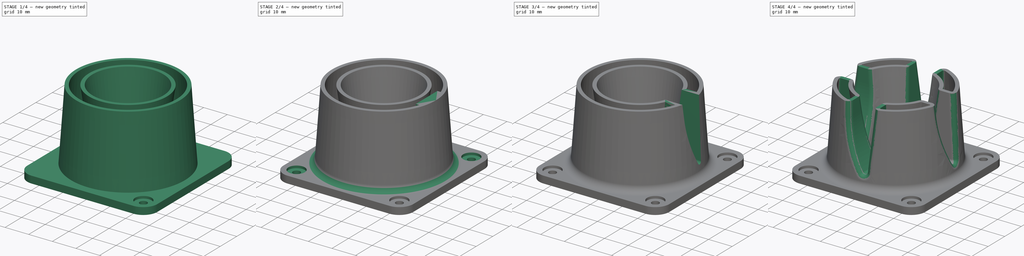
[diagram: build sequence overview — one tinted view per stage of 4, left to right]
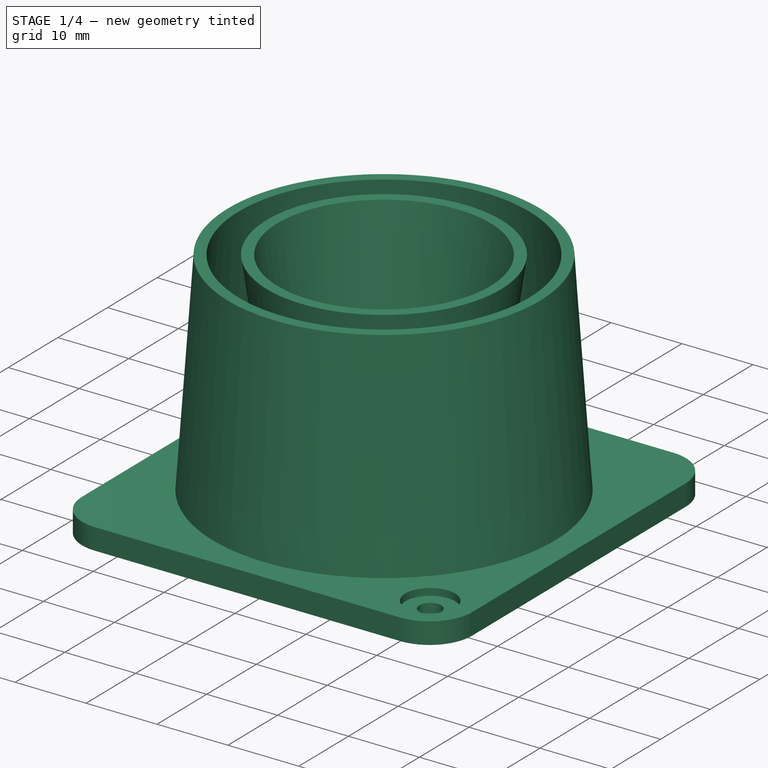
[diagram: stage 1 of 4 — iso view after this stage's code; geometry added in this stage tinted green]
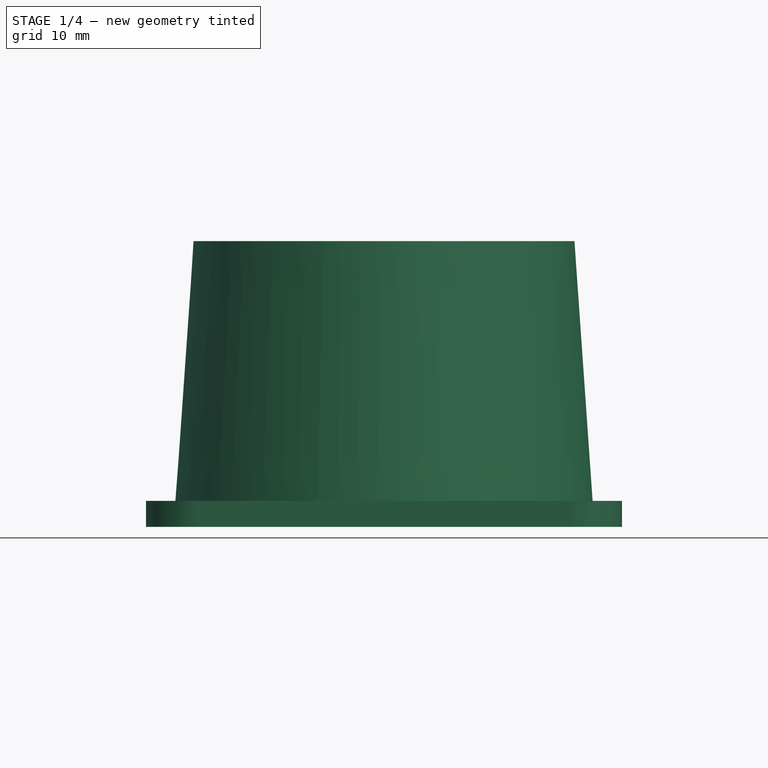
[diagram: stage 1 of 4 — front view after this stage's code; geometry added in this stage tinted green]
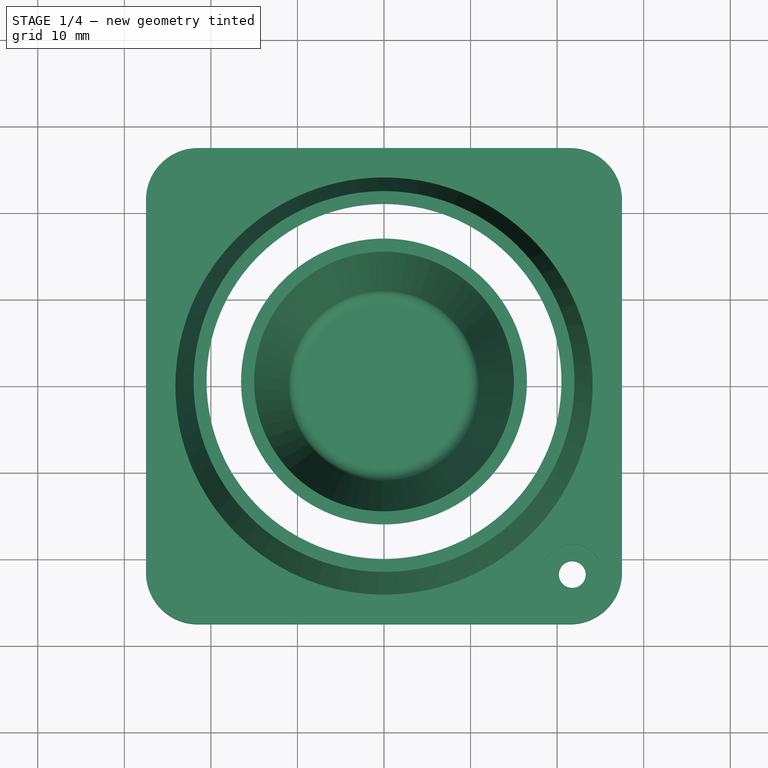
[diagram: stage 1 of 4 — top view after this stage's code; geometry added in this stage tinted green]
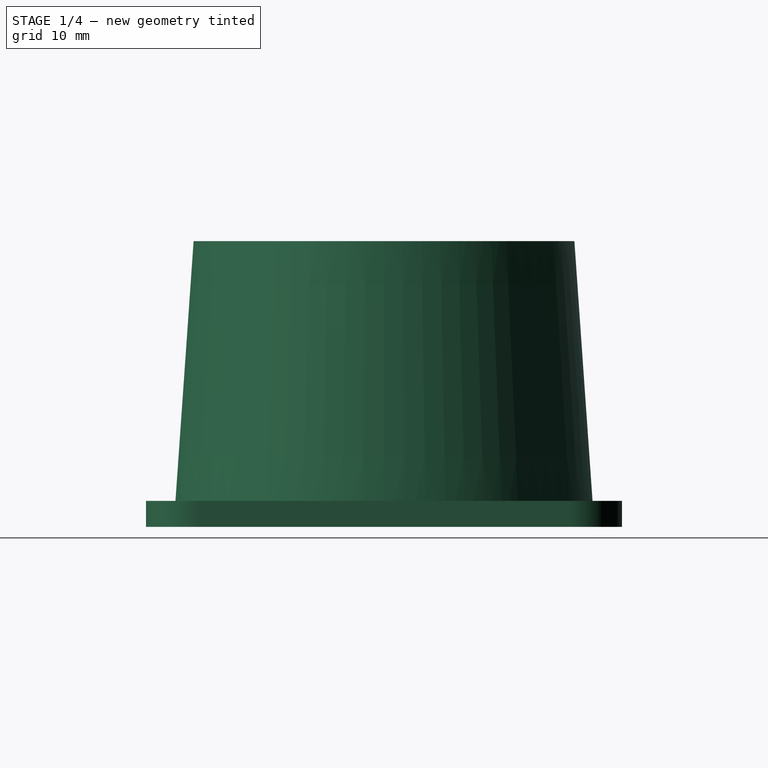
[diagram: stage 1 of 4 — right view after this stage's code; geometry added in this stage tinted green]
FCSTD DOCUMENT  (FreeCAD 1.0R39319 (Git))
Label: 25-SPO-20-FAN SHROLID
License: All rights reserved
LicenseURL: https://en.wikipedia.org/wiki/All_rights_reserved
objects: Sketcher::SketchObject×4, PartDesign::Pad×3, PartDesign::Fillet×3, PartDesign::PolarPattern×2, PartDesign::Revolution×1, PartDesign::Groove×1, PartDesign::Pocket×1, PartDesign::Body×1
note: 40 computed .brp shape members not serialized (recipe doc carries the construction recipe); baked Part::Feature solids carry a one-line shape summary decoded from their .brp

FEATURE [Sketcher::SketchObject] Sketch
  ArcFitTolerance = 1e-06
  AttachmentSupport = -> [XZ_Plane]
  FullyConstrained = true
  MakeInternals = false
  MapMode = 5
  Placement = pos=(0,0,0) rot=(1,0,0;1.5708rad)
  expr: Constraints[22] = 30 / 2
  expr: Constraints[8] = 44 / 2
  sketch-geometry (12):
    g0: LineSegment StartX=22.8039 StartY=0 StartZ=0 EndX=24.3076 EndY=0 EndZ=0
    g1: LineSegment StartX=24.3076 StartY=0 StartZ=0 EndX=22 EndY=33 EndZ=0
    g2: LineSegment StartX=22 StartY=33 StartZ=0 EndX=20.4963 EndY=33 EndZ=0
    g3: LineSegment StartX=20.4963 StartY=33 StartZ=0 EndX=22.8039 EndY=0 EndZ=0
    g4: LineSegment StartX=15 StartY=33 StartZ=0 EndX=10.9652 EndY=4.29124 EndZ=0
    g5: ArcOfCircle CenterX=9.47984 CenterY=4.5 CenterZ=0 NormalX=0 NormalY=0 NormalZ=1 AngleXU=0 Radius=1.5 StartAngle=4.71239 EndAngle=6.14356
    g6: LineSegment StartX=9.47984 StartY=3 StartZ=0 EndX=0 EndY=3 EndZ=0
    g7: LineSegment StartX=0 StartY=3 StartZ=0 EndX=0 EndY=1.5 EndZ=0
    g8: LineSegment StartX=0 StartY=1.5 StartZ=0 EndX=9.47984 EndY=1.5 EndZ=0
    g9: ArcOfCircle CenterX=9.47984 CenterY=4.5 CenterZ=0 NormalX=0 NormalY=0 NormalZ=1 AngleXU=0 Radius=3 StartAngle=4.71239 EndAngle=6.14356
    g10: LineSegment StartX=12.4506 StartY=4.08248 StartZ=0 EndX=16.5147 EndY=33 EndZ=0
    g11: LineSegment StartX=16.5147 StartY=33 StartZ=0 EndX=15 EndY=33 EndZ=0
  constraints (34):
    c: PointOnObject(g0,g-1)
    c: PointOnObject(g0,g-1)
    c: Coincident(g1,g2)
    c: Coincident(g2,g3)
    c: Coincident(g0,g3)
    c: Horizontal(g2)
    c: Parallel(g1,g3)
    c: Distance(g1,g3) = 1.5
    c: DistanceX(g1) = 22
    c: DistanceY(g2) = 33
    c: Tangent(g4,g5) = 1.5708
    c: PointOnObject(g6,g-2)
    c: Horizontal(g6)
    c: Coincident(g6,g7)
    c: PointOnObject(g7,g-2)
    c: Coincident(g7,g8)
    c: Horizontal(g8)
    c: Tangent(g8,g9) = -1.5708
    c: Coincident(g10,g11)
    c: Coincident(g11,g4)
    c: Horizontal(g11)
    c: Horizontal(g10,g2)
    c: DistanceX(g4) = 15
    c: Parallel(g4,g10)
    c: Distance(g4,g10) = 1.5
    c: Angle(g4,g-2) = 0.139626
    c: Coincident(g5,g9)
    c: Tangent(g9,g10) = -1.5708
    c: Tangent(g5,g6) = 1.5708
    c: Radius(g9) = 3
    c: DistanceY(g7) = 1.5
    c: Coincident(g0,g1)
    c: DistanceX(g0) = 22.8039
    c: Angle(g-2,g1) = 0.0698132
FEATURE [Sketcher::SketchObject] Sketch001
  ArcFitTolerance = 1e-06
  AttachmentSupport = -> [XY_Plane]
  FullyConstrained = true
  MakeInternals = false
  MapMode = 5
  sketch-geometry (13):
    g0: LineSegment StartX=-27.5 StartY=21.5 StartZ=0 EndX=-27.5 EndY=-21.5 EndZ=0
    g1: LineSegment StartX=-21.5 StartY=-27.5 StartZ=0 EndX=21.5 EndY=-27.5 EndZ=0
    g2: LineSegment StartX=27.5 StartY=-21.5 StartZ=0 EndX=27.5 EndY=21.5 EndZ=0
    g3: LineSegment StartX=21.5 StartY=27.5 StartZ=0 EndX=-21.5 EndY=27.5 EndZ=0
    g4: ArcOfCircle CenterX=-21.5 CenterY=21.5 CenterZ=0 NormalX=0 NormalY=0 NormalZ=1 AngleXU=0 Radius=6 StartAngle=1.5708 EndAngle=3.14159
    g5: GeomPoint [constr] X=-27.5 Y=27.5 Z=0
    g6: ArcOfCircle CenterX=21.5 CenterY=21.5 CenterZ=0 NormalX=0 NormalY=0 NormalZ=1 AngleXU=0 Radius=6 StartAngle=1e-16 EndAngle=1.5708
    g7: GeomPoint [constr] X=27.5 Y=27.5 Z=0
    g8: ArcOfCircle CenterX=21.5 CenterY=-21.5 CenterZ=0 NormalX=0 NormalY=0 NormalZ=1 AngleXU=0 Radius=6 StartAngle=4.71239 EndAngle=6.28319
    g9: GeomPoint [constr] X=27.5 Y=-27.5 Z=0
    g10: ArcOfCircle CenterX=-21.5 CenterY=-21.5 CenterZ=0 NormalX=0 NormalY=0 NormalZ=1 AngleXU=0 Radius=6 StartAngle=3.14159 EndAngle=4.71239
    g11: GeomPoint [constr] X=-27.5 Y=-27.5 Z=0
    g12: Circle CenterX=0 CenterY=0 CenterZ=0 NormalX=0 NormalY=0 NormalZ=1 AngleXU=0 Radius=23
  constraints (30):
    c: Vertical(g0)
    c: Vertical(g2)
    c: Horizontal(g1)
    c: Horizontal(g3)
    c: Symmetric(g7,g11,g-1)
    c: DistanceX(g5,g7) = 55
    c: PointOnObject(g5,g0)
    c: PointOnObject(g5,g3)
    c: Tangent(g0,g4) = -1.5708
    c: Tangent(g3,g4) = -1.5708
    c: PointOnObject(g7,g2)
    c: PointOnObject(g7,g3)
    c: Tangent(g2,g6) = -1.5708
    c: Tangent(g3,g6) = -1.5708
    c: PointOnObject(g9,g1)
    c: PointOnObject(g9,g2)
    c: Tangent(g1,g8) = -1.5708
    c: Tangent(g2,g8) = -1.5708
    c: PointOnObject(g11,g0)
    c: PointOnObject(g11,g1)
    c: Tangent(g0,g10) = -1.5708
    c: Tangent(g1,g10) = -1.5708
    c: Equal(g8,g10)
    c: Equal(g10,g6)
    c: Equal(g6,g4)
    c: Radius(g6) = 6
    c: DistanceX(g8) = 21.5
    c: Coincident(g12,g-1)
    c: Radius(g12) = 23
    c: Equal(g2,g3)
FEATURE [PartDesign::Pad] Pad
  Direction = (0,0,1)
  Length = 3
  Length2 = 10
  Profile = -> Sketch001
  ReferenceAxis = -> Sketch001 [N_Axis]
  Refine = true
  Suppressed = false
  Type = 0
FEATURE [PartDesign::Revolution] Revolution
  Angle = 360
  Angle2 = 60
  Axis = (0,2e-16,1)
  Base = (0,0,0)
  BaseFeature = -> Pad
  Profile = -> Sketch
  ReferenceAxis = -> Sketch [V_Axis]
  Refine = true
  Reversed = true
  Suppressed = false
  Type = 0
FEATURE [Sketcher::SketchObject] Sketch002
  ArcFitTolerance = 1e-06
  AttachmentOffset = pos=(21.75,0,21.75) rot=(0,0,1;0rad)
  AttachmentSupport = -> [XZ_Plane]
  FullyConstrained = true
  MakeInternals = false
  MapMode = 5
  Placement = pos=(21.75,-21.75,4.8e-15) rot=(1,0,0;1.5708rad)
  expr: Constraints[14] = 3.1 / 2
  sketch-geometry (6):
    g0: LineSegment StartX=0 StartY=0 StartZ=0 EndX=0 EndY=3 EndZ=0
    g1: LineSegment StartX=0 StartY=3 StartZ=0 EndX=3.5 EndY=3 EndZ=0
    g2: LineSegment StartX=3.5 StartY=3 StartZ=0 EndX=3.5 EndY=2 EndZ=0
    g3: LineSegment StartX=3.5 StartY=2 StartZ=0 EndX=1.55 EndY=2 EndZ=0
    g4: LineSegment StartX=1.55 StartY=2 StartZ=0 EndX=1.55 EndY=0 EndZ=0
    g5: LineSegment StartX=1.55 StartY=0 StartZ=0 EndX=0 EndY=0 EndZ=0
  constraints (17):
    c: Vertical(g0)
    c: Coincident(g0,g1)
    c: Horizontal(g1)
    c: Coincident(g1,g2)
    c: Vertical(g2)
    c: Coincident(g2,g3)
    c: Horizontal(g3)
    c: Coincident(g3,g4)
    c: Vertical(g4)
    c: Coincident(g4,g5)
    c: Coincident(g5,g0)
    c: Horizontal(g5)
    c: DistanceY(g2,g2) = 1
    c: DistanceY(g0,g0) = 3
    c: DistanceX(g5,g5) = 1.55
    c: DistanceX(g1,g1) = 3.5
    c: Coincident(g0,g-1)
FEATURE [PartDesign::Groove] Groove
  Angle = 360
  Angle2 = 60
  Axis = (0,2e-16,1)
  Base = (21.75,-21.75,4.8e-15)
  BaseFeature = -> Revolution
  Profile = -> Sketch002
  ReferenceAxis = -> Sketch002 [V_Axis]
  Refine = true
  Suppressed = false
  Type = 0
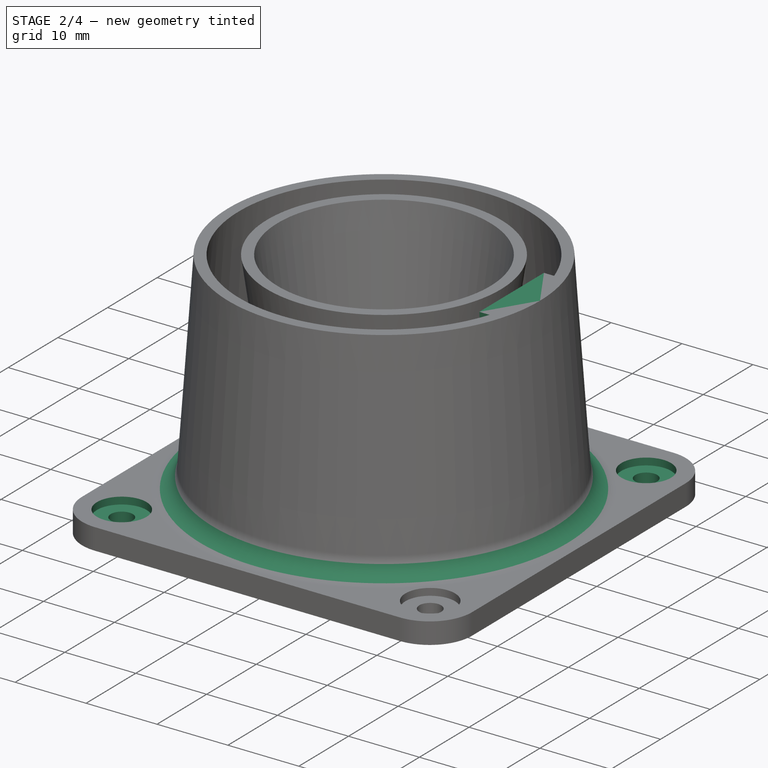
[diagram: stage 2 of 4 — iso view after this stage's code; geometry added in this stage tinted green]
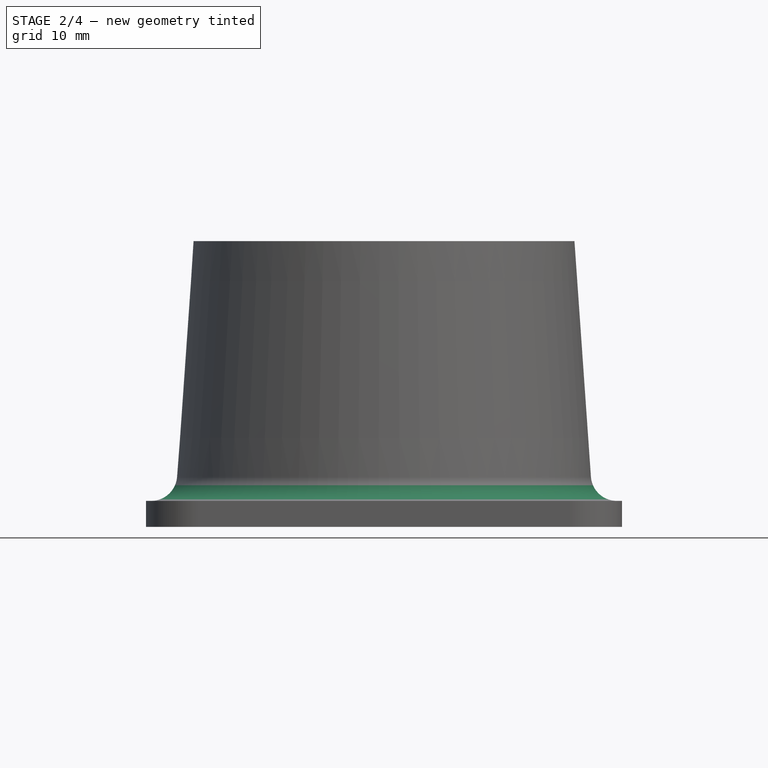
[diagram: stage 2 of 4 — front view after this stage's code; geometry added in this stage tinted green]
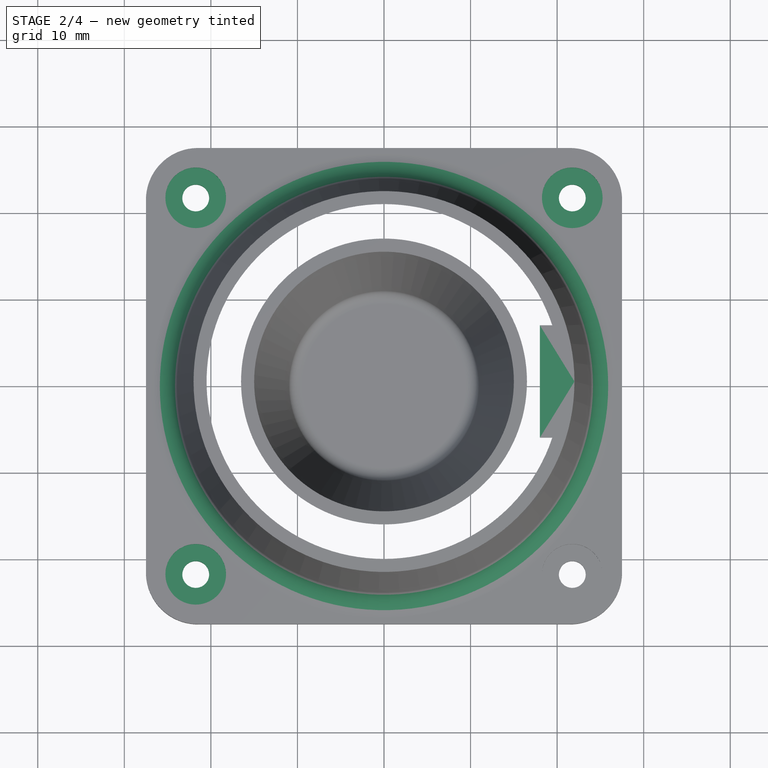
[diagram: stage 2 of 4 — top view after this stage's code; geometry added in this stage tinted green]
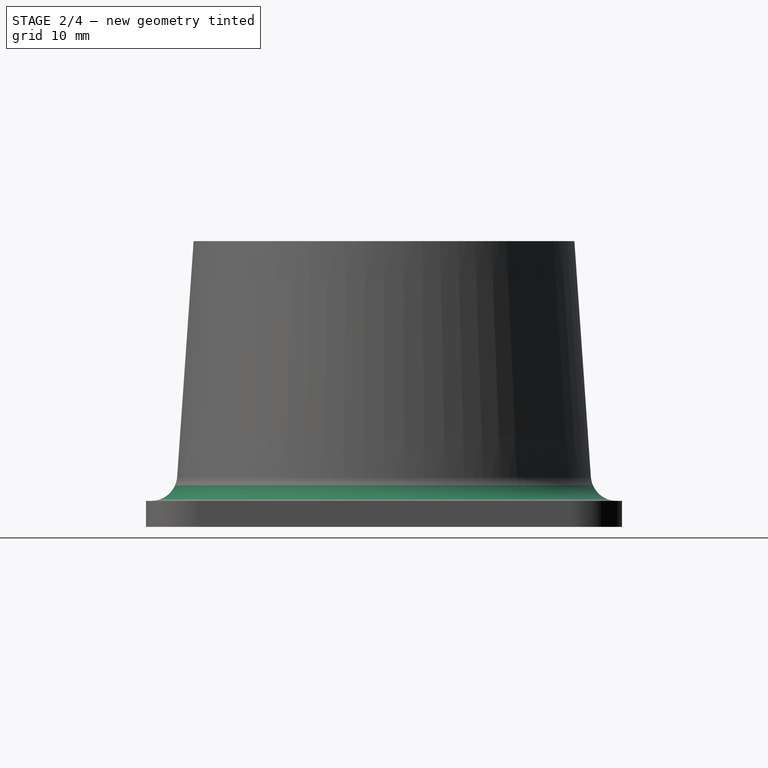
[diagram: stage 2 of 4 — right view after this stage's code; geometry added in this stage tinted green]
FEATURE [PartDesign::PolarPattern] PolarPattern
  Angle = 360
  Axis = -> Z_Axis
  BaseFeature = -> Groove
  Mode = 0
  Occurrences = 4
  Offset = 120
  Originals = -> [Groove]
  Refine = true
  Suppressed = false
  TransformMode = 0
FEATURE [PartDesign::Fillet] Fillet
  Base = -> PolarPattern [Edge29]
  BaseFeature = -> PolarPattern
  Radius = 3
  Refine = true
  SupportTransform = false
  Suppressed = false
  UseAllEdges = false
FEATURE [Sketcher::SketchObject] Sketch004
  ArcFitTolerance = 1e-06
  AttachmentOffset = pos=(0,0,18) rot=(0,0,1;0rad)
  AttachmentSupport = -> [YZ_Plane]
  FullyConstrained = true
  MakeInternals = false
  MapMode = 5
  Placement = pos=(18,0,0) rot=(0.57735,0.57735,0.57735;2.0944rad)
  sketch-geometry (10):
    g0: LineSegment StartX=5 StartY=33 StartZ=0 EndX=3.31688 EndY=8.93024 EndZ=0
    g1: ArcOfCircle CenterX=2.31931 CenterY=9 CenterZ=0 NormalX=0 NormalY=0 NormalZ=1 AngleXU=0 Radius=1 StartAngle=3.6911 EndAngle=6.21337
    g2: ArcOfCircle CenterX=37.2835 CenterY=30.4128 CenterZ=0 NormalX=0 NormalY=0 NormalZ=1 AngleXU=0 Radius=42 StartAngle=3.21141 EndAngle=3.6911
    g3: LineSegment StartX=-6.50366 StartY=33 StartZ=0 EndX=6.50366 EndY=33 EndZ=0
    g4: LineSegment StartX=6.50366 StartY=33 StartZ=0 EndX=4.81322 EndY=8.82561 EndZ=0
    g5: ArcOfCircle CenterX=2.31931 CenterY=9 CenterZ=0 NormalX=0 NormalY=0 NormalZ=1 AngleXU=0 Radius=2.5 StartAngle=3.6911 EndAngle=6.21337
    g6: ArcOfCircle CenterX=37.2835 CenterY=30.4128 CenterZ=0 NormalX=0 NormalY=0 NormalZ=1 AngleXU=0 Radius=43.5 StartAngle=3.21141 EndAngle=3.6911
    g7: LineSegment StartX=5 StartY=33 StartZ=0 EndX=-5 EndY=33 EndZ=0
    g8: LineSegment StartX=-5 StartY=33 StartZ=0 EndX=-4.61421 EndY=27.483 EndZ=0
    g9: LineSegment StartX=-6.50366 StartY=33 StartZ=0 EndX=-6.11056 EndY=27.3784 EndZ=0
  constraints (26):
    c: Tangent(g0,g1) = 1.5708
    c: Horizontal(g3)
    c: Coincident(g3,g4)
    c: Tangent(g4,g5) = 1.5708
    c: Coincident(g1,g5)
    c: Radius(g1) = 1
    c: Parallel(g0,g4)
    c: Distance(g0,g4) = 1.5
    c: Coincident(g2,g6)
    c: DistanceY(g3) = 33
    c: Angle(g0,g-2) = 0.0698132
    c: DistanceY(g1,g0) = 24
    c: Horizontal(g7)
    c: Radius(g2) = 42
    c: Coincident(g0,g7)
    c: Horizontal(g0,g3)
    c: DistanceX(g0) = 5
    c: Coincident(g7,g8)
    c: Coincident(g3,g9)
    c: Parallel(g8,g9)
    c: Tangent(g8,g2) = -1.5708
    c: Tangent(g9,g6) = -1.5708
    c: Tangent(g1,g2) = -1.5708
    c: DistanceX(g7) = -5
    c: Tangent(g5,g6) = -1.5708
    c: Angle(g-2,g8) = 0.0698132
FEATURE [PartDesign::Pad] Pad001
  BaseFeature = -> Fillet
  Direction = (1,0,0)
  Length = 10
  Length2 = 10
  Profile = -> Sketch004 [Edge6,Edge10,Edge9,Edge7,Edge8]
  ReferenceAxis = -> Sketch004 [N_Axis]
  Refine = true
  Suppressed = false
  Type = 2
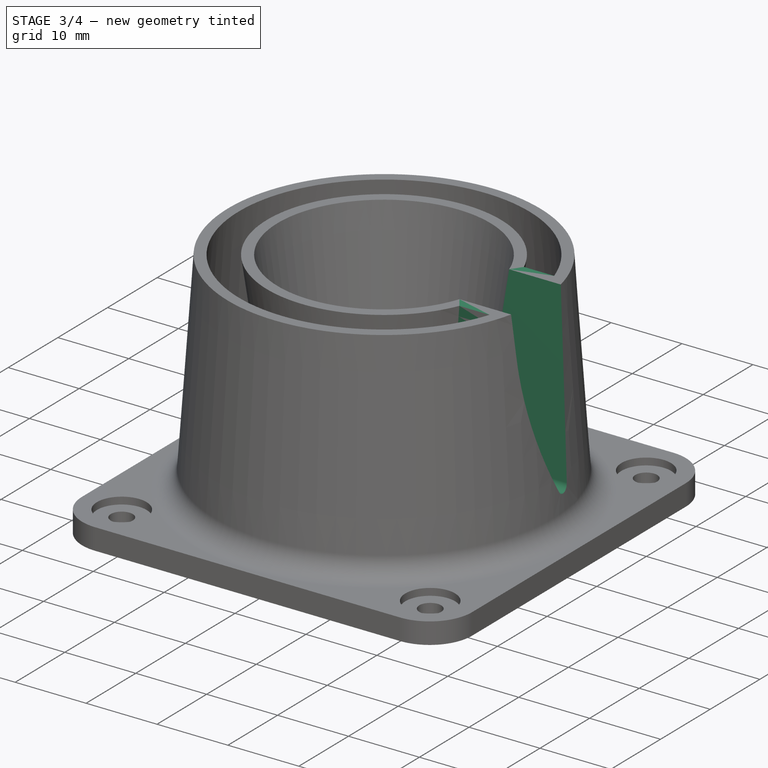
[diagram: stage 3 of 4 — iso view after this stage's code; geometry added in this stage tinted green]
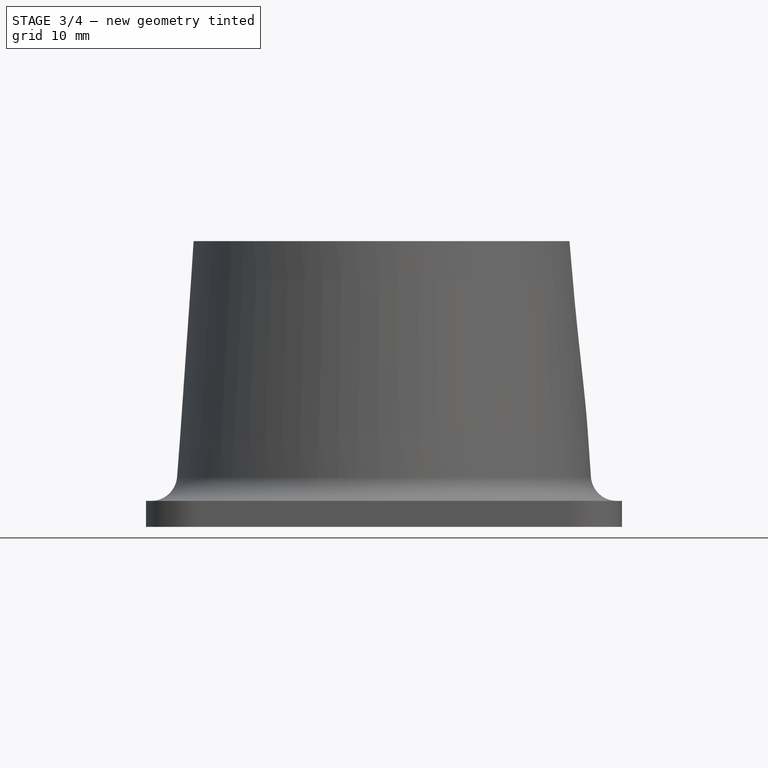
[diagram: stage 3 of 4 — front view after this stage's code; geometry added in this stage tinted green]
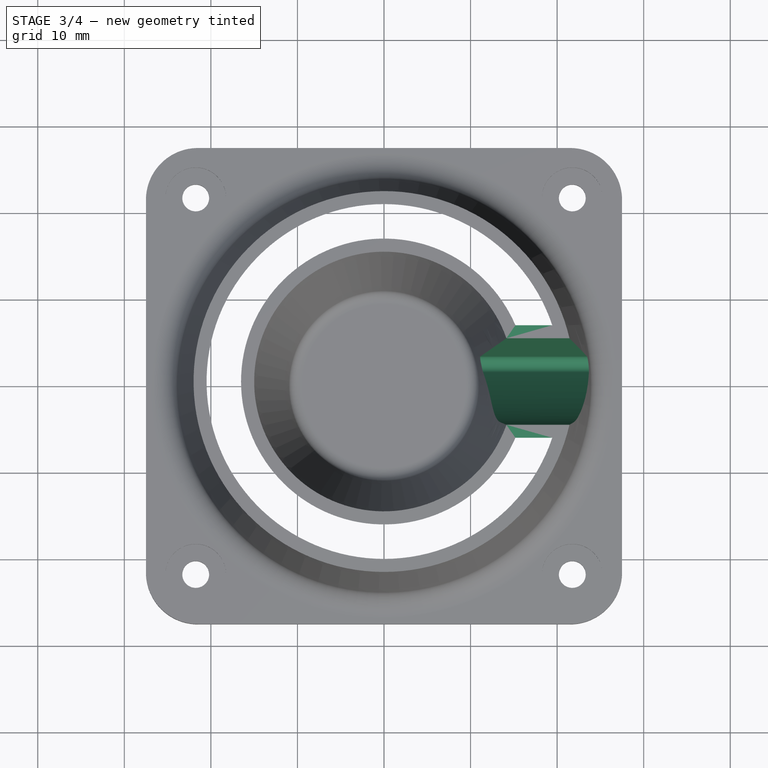
[diagram: stage 3 of 4 — top view after this stage's code; geometry added in this stage tinted green]
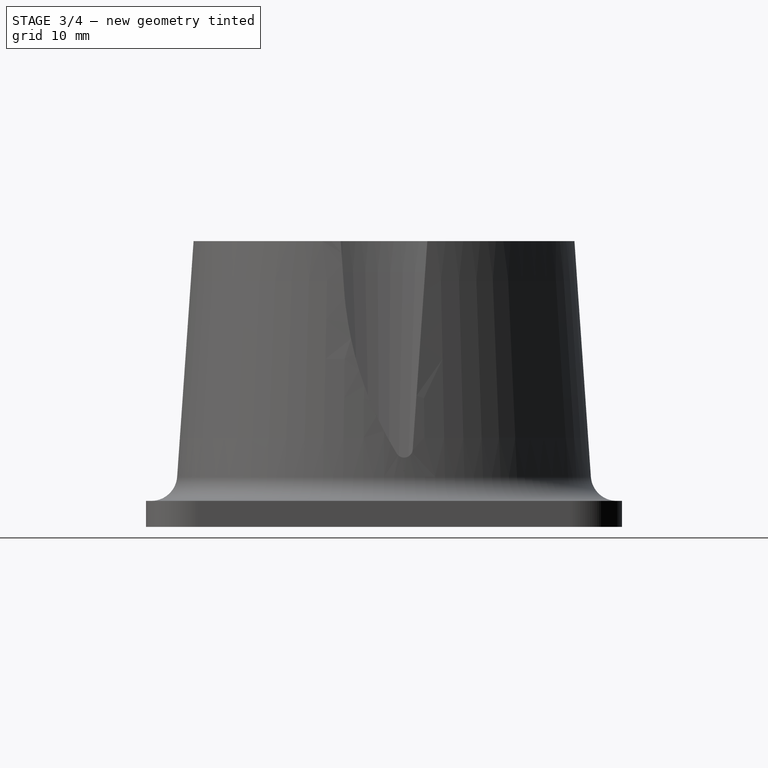
[diagram: stage 3 of 4 — right view after this stage's code; geometry added in this stage tinted green]
FEATURE [PartDesign::Pad] Pad002
  BaseFeature = -> Pad001
  Direction = (-1,0,0)
  Length = 10
  Length2 = 10
  Profile = -> Pad001 [Face30]
  Refine = true
  Suppressed = false
  Type = 2
FEATURE [PartDesign::Pocket] Pocket
  BaseFeature = -> Pad002
  Direction = (-1,0,0)
  Length = 15
  Length2 = 5
  Midplane = true
  Profile = -> Sketch004 [Edge1,Edge5,Edge4,Edge3,Edge2]
  ReferenceAxis = -> Sketch004 [N_Axis]
  Refine = true
  Suppressed = false
  Type = 0
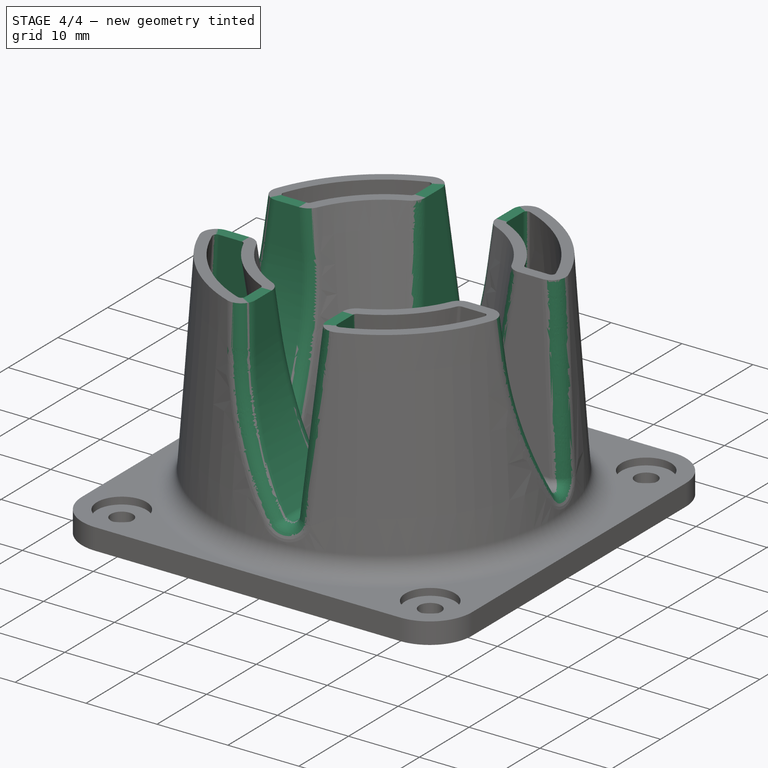
[diagram: stage 4 of 4 — iso view after this stage's code; geometry added in this stage tinted green]
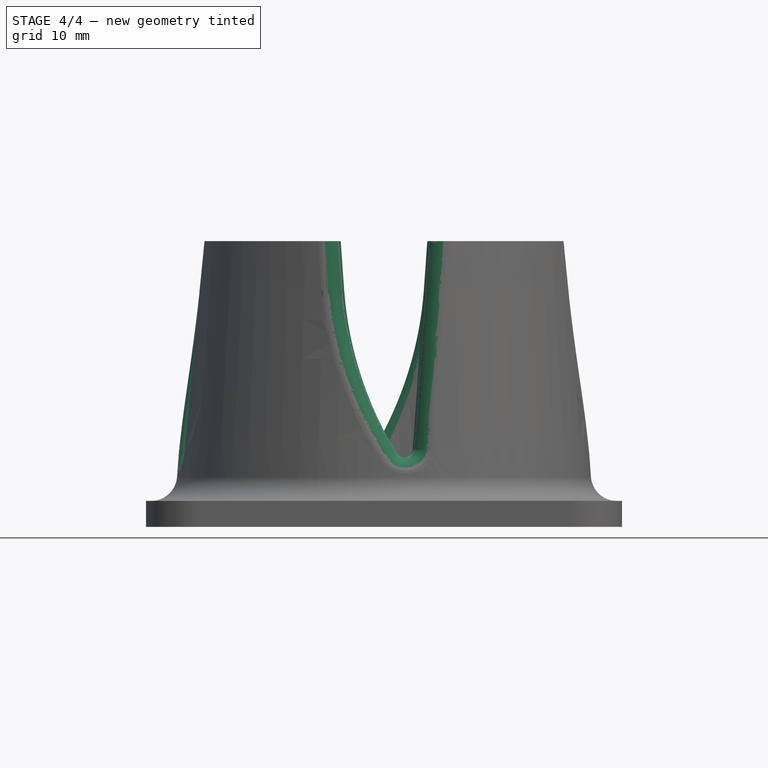
[diagram: stage 4 of 4 — front view after this stage's code; geometry added in this stage tinted green]
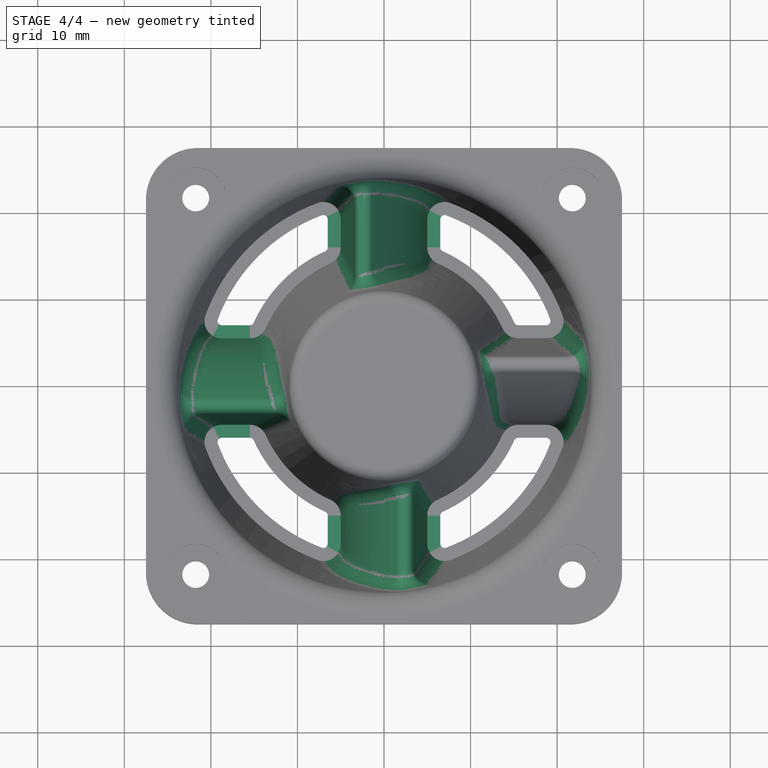
[diagram: stage 4 of 4 — top view after this stage's code; geometry added in this stage tinted green]
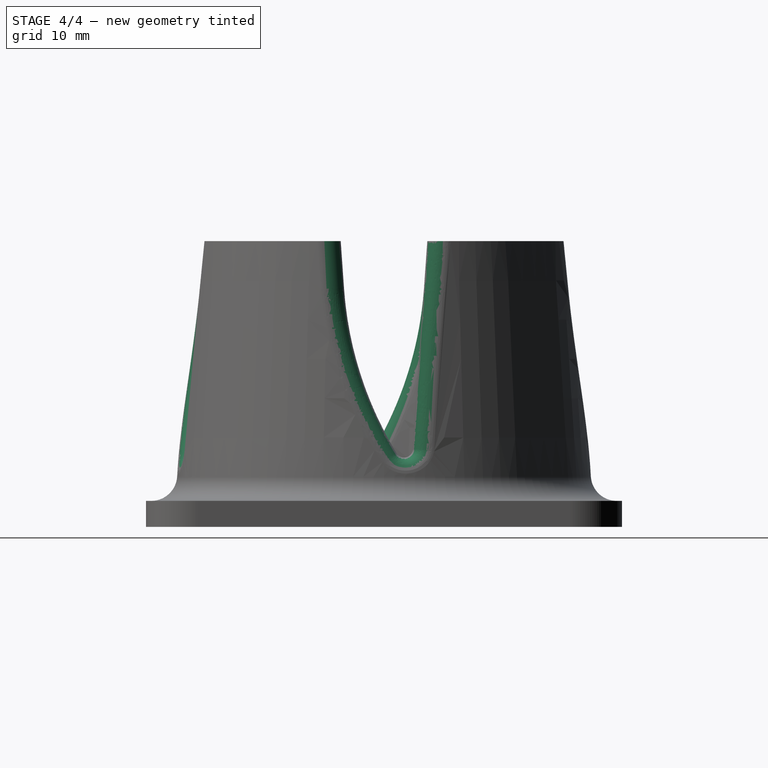
[diagram: stage 4 of 4 — right view after this stage's code; geometry added in this stage tinted green]
FEATURE [PartDesign::PolarPattern] PolarPattern001
  Angle = 360
  Axis = -> Z_Axis
  BaseFeature = -> Pocket
  Mode = 0
  Occurrences = 4
  Offset = 120
  Originals = -> [Pad001,Pad002,Pocket]
  Refine = true
  Suppressed = false
  TransformMode = 0
FEATURE [PartDesign::Fillet] Fillet001
  Base = -> PolarPattern001 [Edge54,Edge96,Edge59,Edge106,Edge79,Edge44,Edge87,Edge49]
  BaseFeature = -> PolarPattern001
  Radius = 2
  Refine = true
  SupportTransform = false
  Suppressed = false
  UseAllEdges = false
FEATURE [PartDesign::Fillet] Fillet002
  Base = -> Fillet001 [Edge171,Edge161,Edge186,Edge146,Edge151,Edge181,Edge176,Edge156]
  BaseFeature = -> Fillet001
  Radius = 0.5
  Refine = true
  SupportTransform = false
  Suppressed = false
  UseAllEdges = false
FEATURE [PartDesign::Body] Body
  AllowCompound = true
  Group = -> [Sketch,Sketch001,Pad,Revolution,Sketch002,Groove,PolarPattern,Fillet,Sketch004,Pad001,Pad002,Pocket,PolarPattern001,Fillet001,Fillet002]
  Origin = -> Origin
  Tip = -> Fillet002
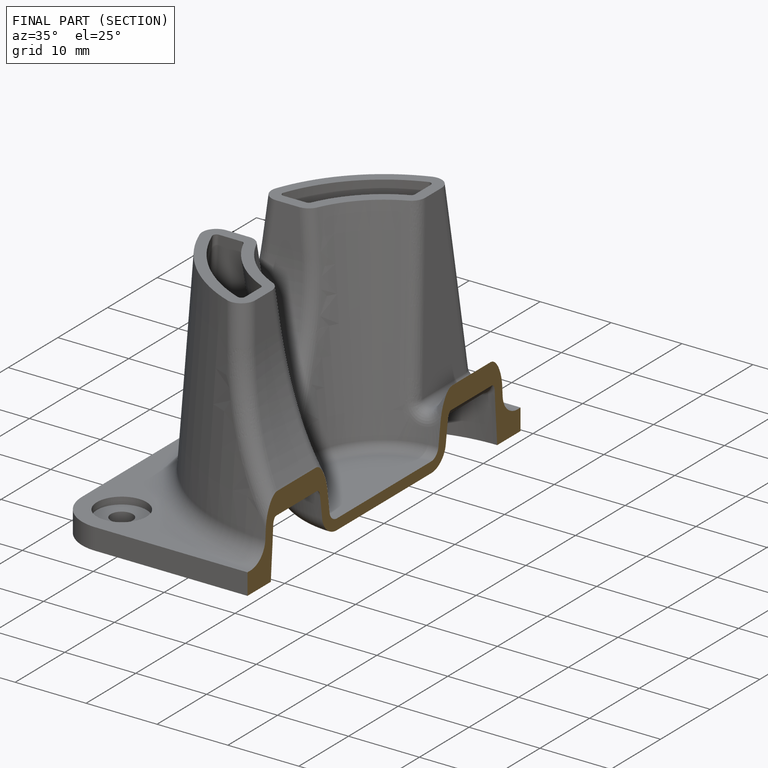
[diagram: finished part — half-section view (interior)]
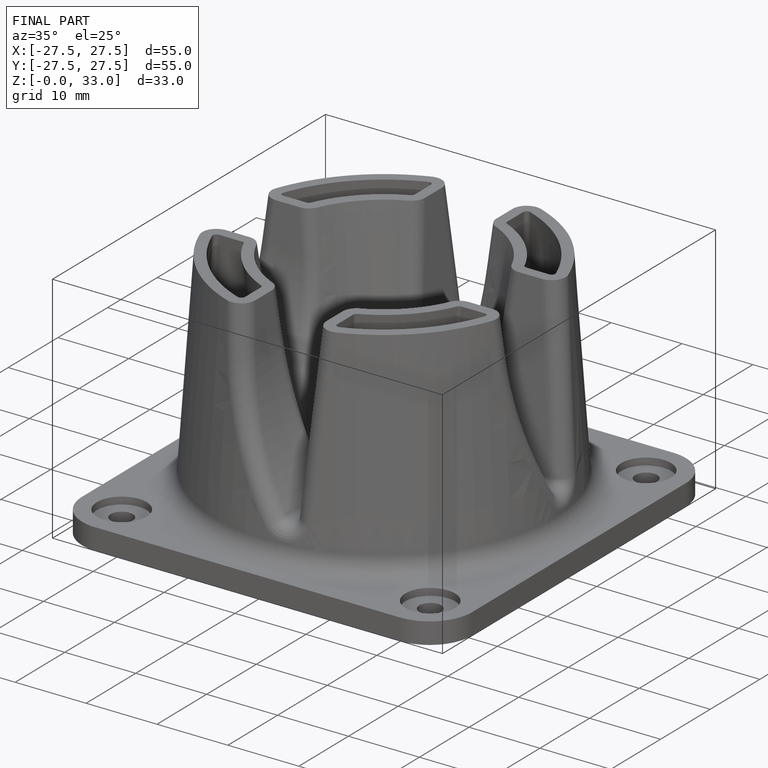
[diagram: finished part — iso view with bounding-box wireframe]
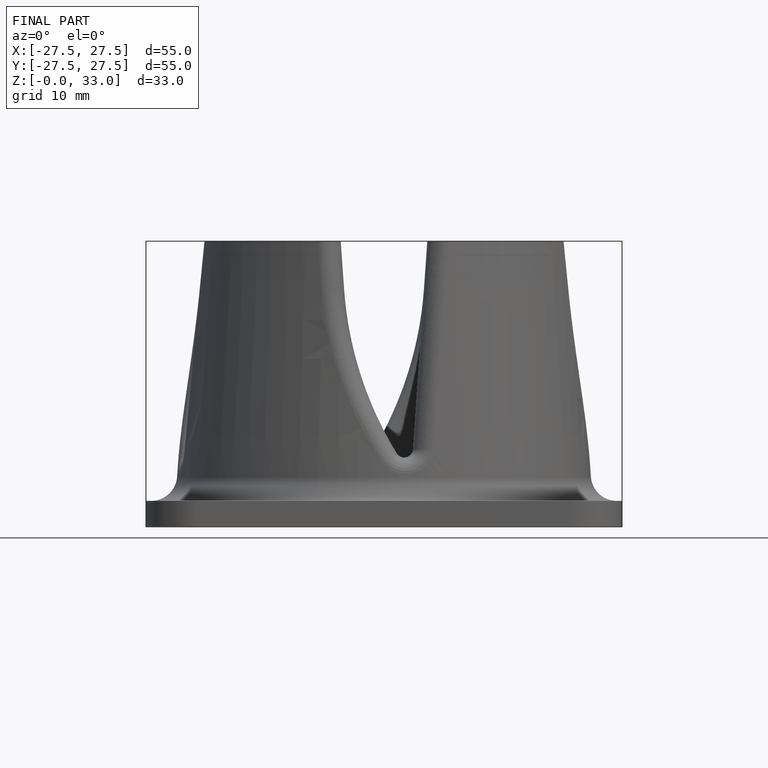
[diagram: finished part — front view with bounding-box wireframe]
